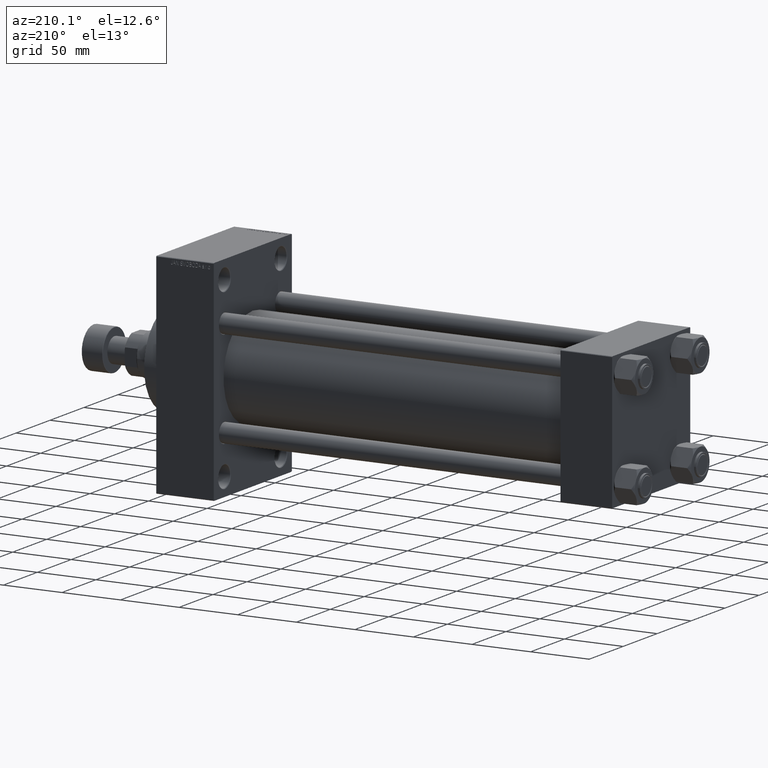
[diagram: clean part render]
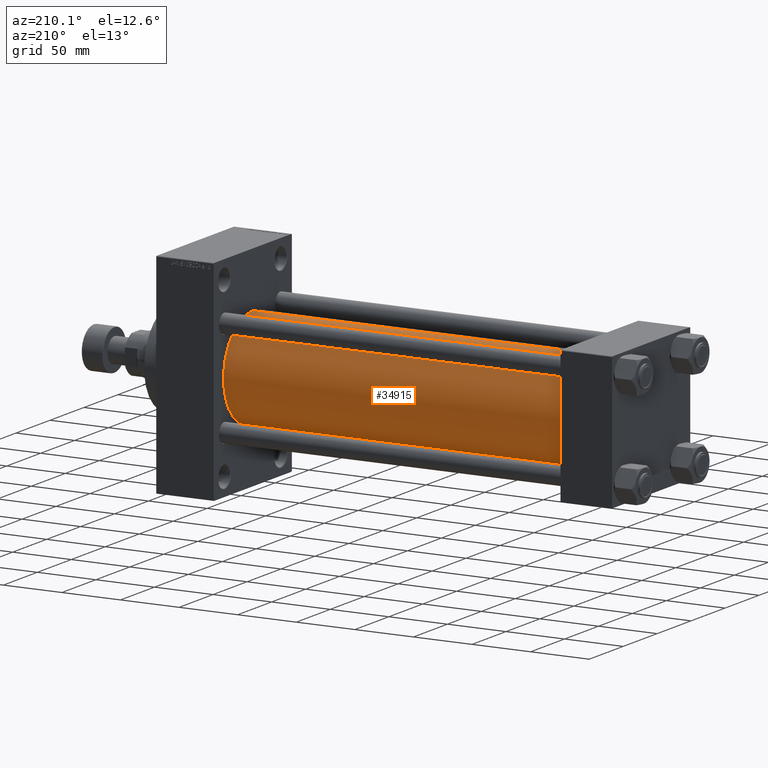
[diagram: same view with one face highlighted and labeled with its STEP entity id]
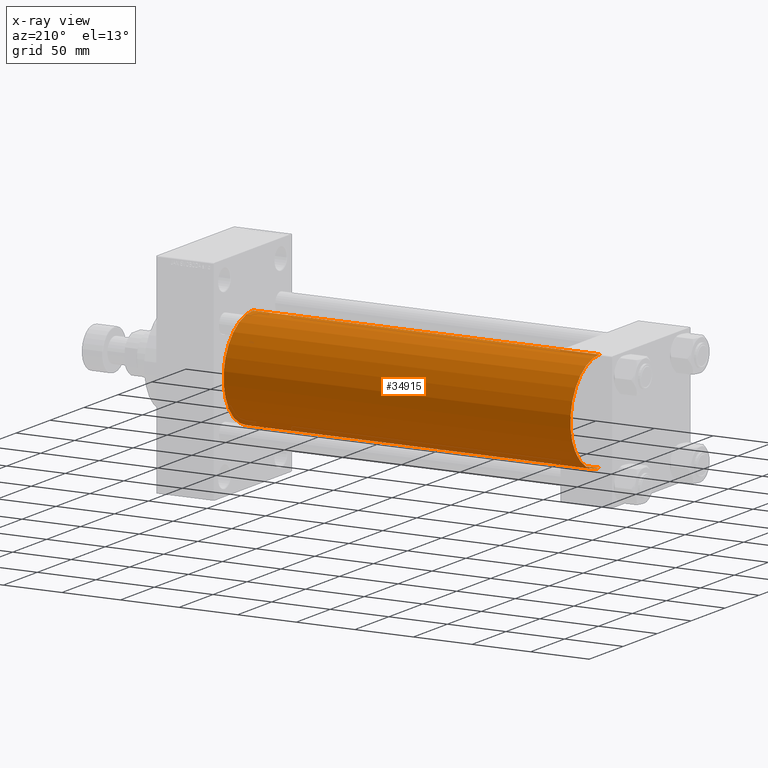
[diagram: x-ray of the same camera — body ghosted, the highlighted face saturated]
A machine part, auxiliary view. The second image highlights one B-rep face of the part: STEP entity #34915.
The next image is the same camera in x-ray: the body ghosted, the highlighted face saturated — about 0% of this face is hidden behind the body in this view.
In plain terms, the highlighted cylindrical surface (partial cylindrical patch) has radius 43 mm, axis along (-1, -0, -0).
Its self-contained STEP definition (entity closure, byte-faithful):
#1711 = CARTESIAN_POINT ( 'NONE',  ( 43.99999999999998579, -2.602085213965210642E-15, 0.000000000000000000 ) ) ;
#3687 = CARTESIAN_POINT ( 'NONE',  ( 339.9999999999999432, 2.663896022368408223E-15, -43.00000000000000000 ) ) ;
#4856 = EDGE_CURVE ( 'NONE', #13340, #31124, #29201, .T. ) ;
#6957 = CARTESIAN_POINT ( 'NONE',  ( 339.9999999999999432, -2.602085213965210642E-15, 43.00000000000000000 ) ) ;
#7762 = EDGE_CURVE ( 'NONE', #10858, #13340, #15672, .T. ) ;
#10858 = VERTEX_POINT ( 'NONE', #3687 ) ;
#11351 = DIRECTION ( 'NONE',  ( -1.000000000000000000, -0.000000000000000000, -0.000000000000000000 ) ) ;
#11473 = CARTESIAN_POINT ( 'NONE',  ( 43.99999999999998579, -2.602085213965210642E-15, 43.00000000000000000 ) ) ;
#12603 = CARTESIAN_POINT ( 'NONE',  ( 339.9999999999999432, -2.602085213965210642E-15, 0.000000000000000000 ) ) ;
#12806 = AXIS2_PLACEMENT_3D ( 'NONE', #1711, #39366, #31288 ) ;
#13340 = VERTEX_POINT ( 'NONE', #13724 ) ;
#13534 = EDGE_LOOP ( 'NONE', ( #45063, #18681, #24499, #21627 ) ) ;
#13724 = CARTESIAN_POINT ( 'NONE',  ( 43.99999999999998579, 2.663896022368408223E-15, -43.00000000000000000 ) ) ;
#14967 = DIRECTION ( 'NONE',  ( 1.000000000000000000, 0.000000000000000000, 0.000000000000000000 ) ) ;
#15672 = LINE ( 'NONE', #34011, #43357 ) ;
#17958 = AXIS2_PLACEMENT_3D ( 'NONE', #30604, #14967, #19373 ) ;
#18681 = ORIENTED_EDGE ( 'NONE', *, *, #7762, .T. ) ;
#18807 = VERTEX_POINT ( 'NONE', #25753 ) ;
#19373 = DIRECTION ( 'NONE',  ( 0.000000000000000000, 0.000000000000000000, -1.000000000000000000 ) ) ;
#20676 = DIRECTION ( 'NONE',  ( -1.000000000000000000, -0.000000000000000000, -0.000000000000000000 ) ) ;
#21627 = ORIENTED_EDGE ( 'NONE', *, *, #44517, .F. ) ;
#24499 = ORIENTED_EDGE ( 'NONE', *, *, #4856, .T. ) ;
#25753 = CARTESIAN_POINT ( 'NONE',  ( 339.9999999999999432, -2.602085213965210642E-15, 43.00000000000000000 ) ) ;
#28279 = AXIS2_PLACEMENT_3D ( 'NONE', #12603, #20676, #30938 ) ;
#29153 = EDGE_CURVE ( 'NONE', #10858, #18807, #47620, .T. ) ;
#29201 = CIRCLE ( 'NONE', #12806, 43.00000000000000000 ) ;
#30586 = DIRECTION ( 'NONE',  ( -1.000000000000000000, -0.000000000000000000, -0.000000000000000000 ) ) ;
#30604 = CARTESIAN_POINT ( 'NONE',  ( 339.9999999999999432, -2.602085213965210642E-15, 0.000000000000000000 ) ) ;
#30938 = DIRECTION ( 'NONE',  ( 0.000000000000000000, 0.000000000000000000, 1.000000000000000000 ) ) ;
#31124 = VERTEX_POINT ( 'NONE', #11473 ) ;
#31288 = DIRECTION ( 'NONE',  ( 0.000000000000000000, 0.000000000000000000, 1.000000000000000000 ) ) ;
#31804 = VECTOR ( 'NONE', #11351, 1000.000000000000000 ) ;
#34011 = CARTESIAN_POINT ( 'NONE',  ( 339.9999999999999432, 2.663896022368408223E-15, -43.00000000000000000 ) ) ;
#34915 = ADVANCED_FACE ( 'NONE', ( #35352 ), #42211, .T. ) ;
#35352 = FACE_OUTER_BOUND ( 'NONE', #13534, .T. ) ;
#37289 = LINE ( 'NONE', #6957, #31804 ) ;
#39366 = DIRECTION ( 'NONE',  ( 1.000000000000000000, -0.000000000000000000, 0.000000000000000000 ) ) ;
#42211 = CYLINDRICAL_SURFACE ( 'NONE', #28279, 43.00000000000000000 ) ;
#43357 = VECTOR ( 'NONE', #30586, 1000.000000000000000 ) ;
#44517 = EDGE_CURVE ( 'NONE', #18807, #31124, #37289, .T. ) ;
#45063 = ORIENTED_EDGE ( 'NONE', *, *, #29153, .F. ) ;
#47620 = CIRCLE ( 'NONE', #17958, 43.00000000000000000 ) ;